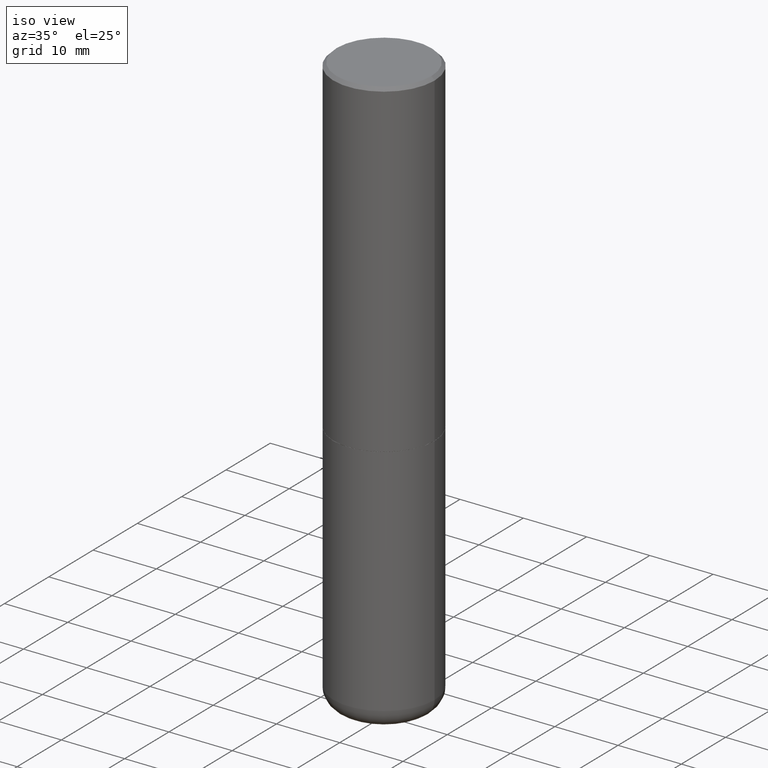
[diagram: clean part render]
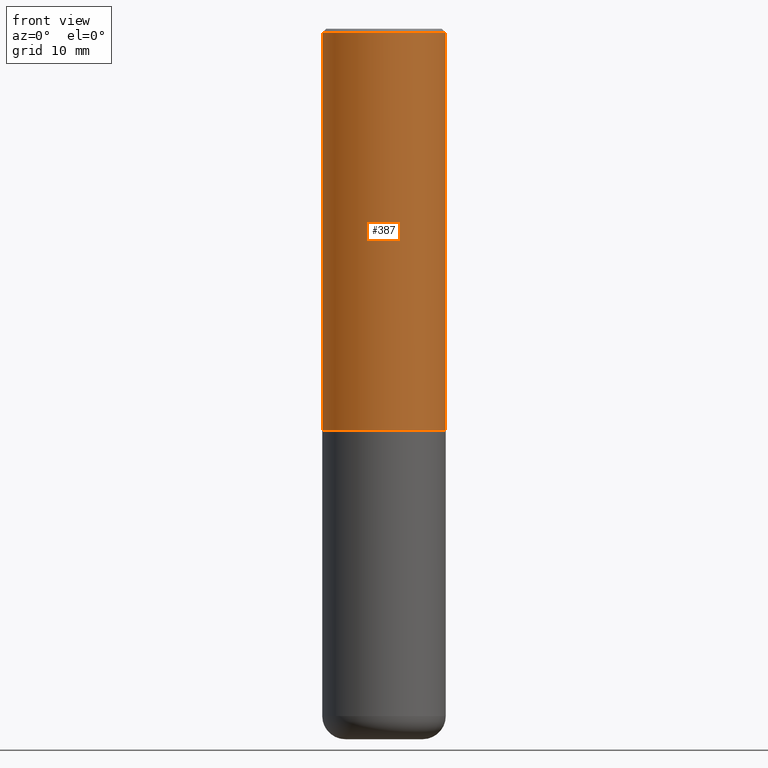
[diagram: tour spotlight — one face highlighted and labeled with its STEP entity id]
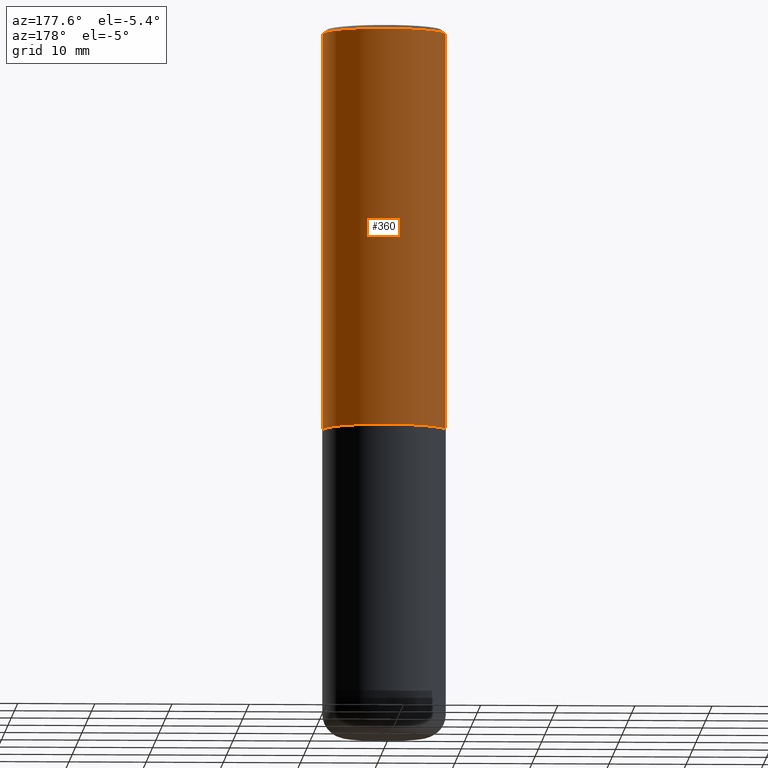
[diagram: tour spotlight — one face highlighted and labeled with its STEP entity id]
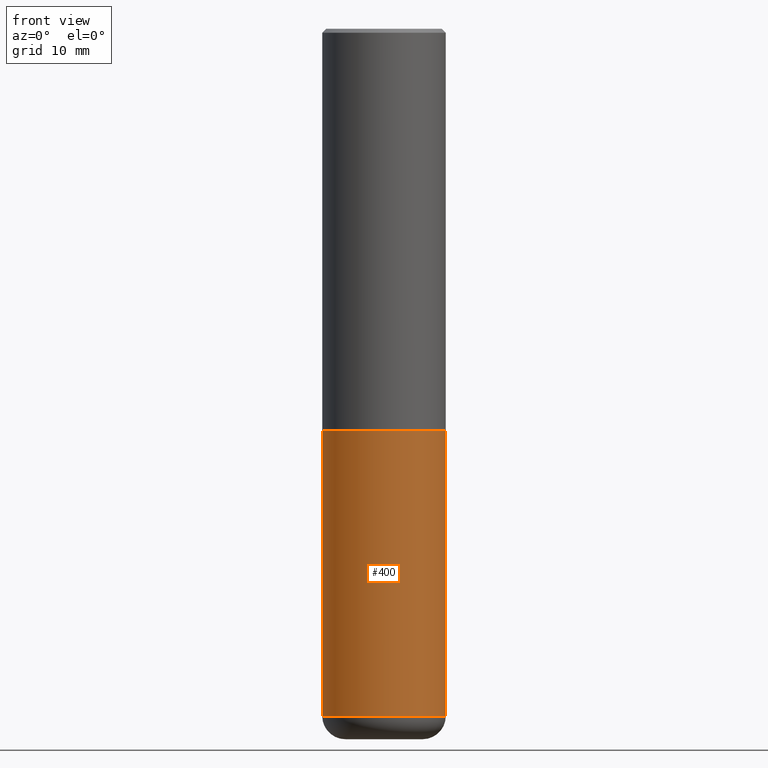
[diagram: tour spotlight — one face highlighted and labeled with its STEP entity id]
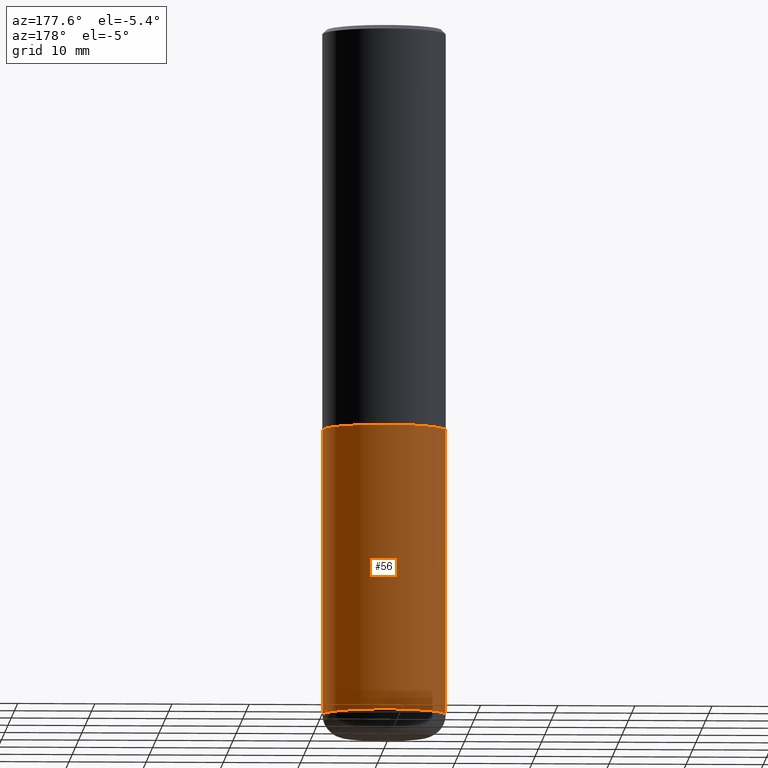
[diagram: tour spotlight — one face highlighted and labeled with its STEP entity id]
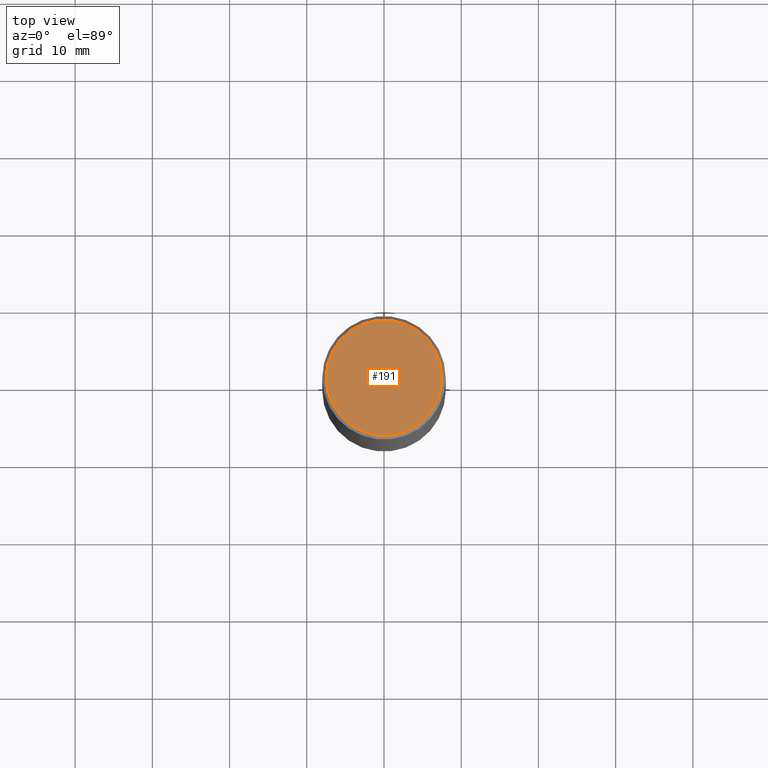
[diagram: tour spotlight — one face highlighted and labeled with its STEP entity id]
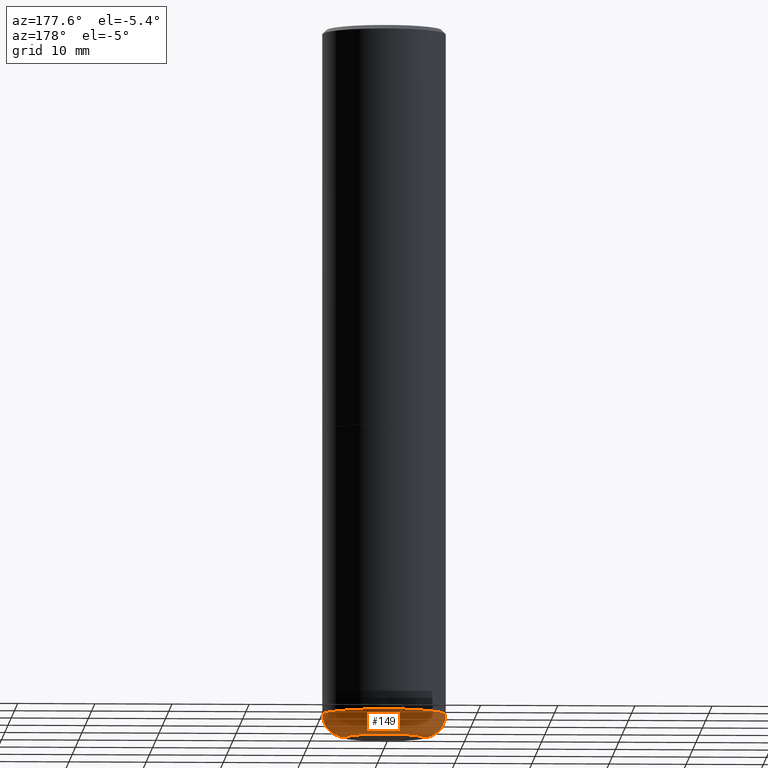
[diagram: tour spotlight — one face highlighted and labeled with its STEP entity id]
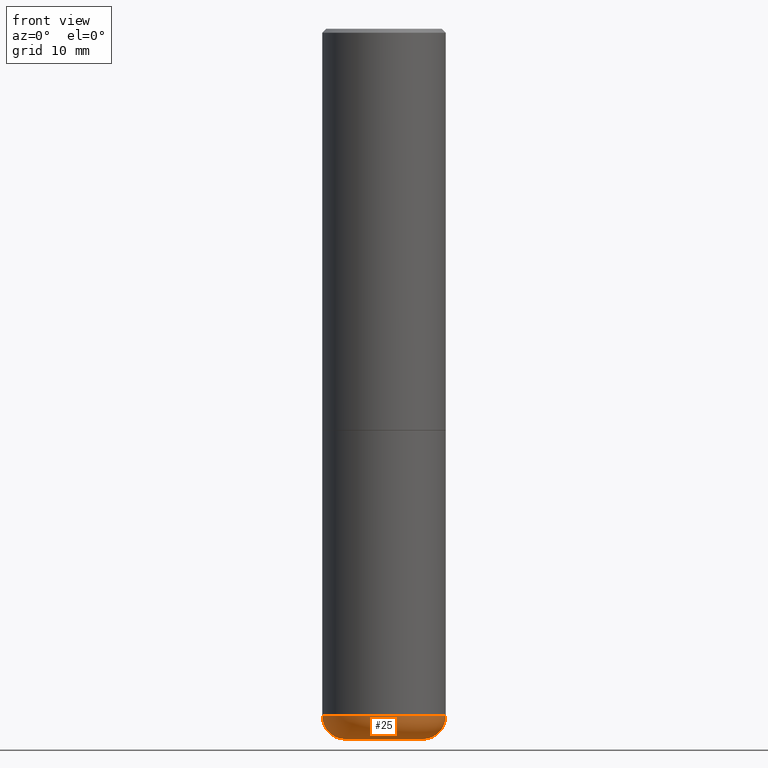
[diagram: tour spotlight — one face highlighted and labeled with its STEP entity id]
A machine part: a face-by-face anatomy tour. The part has 14 B-rep faces; the first image is the clean iso view, then the 7 largest visible faces are spotlighted one at a time (largest first), each with its STEP entity span.

Face 1 — front view, entity #387. In plain terms, the highlighted cylindrical surface (partial cylindrical patch) has radius 7.9997 mm, axis along (-0, 0, 1).
Definition (entity closure, byte-faithful):
#5 = ORIENTED_EDGE ( 'NONE', *, *, #129, .T. ) ;
#6 = CIRCLE ( 'NONE', #173, 0.3149500000000002853 ) ;
#17 = DIRECTION ( 'NONE',  ( 1.000000000000000000, -6.982962677686267499E-15, 0.000000000000000000 ) ) ;
#22 = DIRECTION ( 'NONE',  ( 1.000000000000000000, -6.982962677686265922E-15, 4.876176775795935232E-29 ) ) ;
#27 = CARTESIAN_POINT ( 'NONE',  ( 0.3149500000000002853, -9.343553210878135066E-15, -2.046199999999999797 ) ) ;
#39 = CARTESIAN_POINT ( 'NONE',  ( -0.3149500000000002853, -1.369195024882414317E-15, -2.046199999999999797 ) ) ;
#42 = AXIS2_PLACEMENT_3D ( 'NONE', #89, #355, #22 ) ;
#47 = LINE ( 'NONE', #86, #125 ) ;
#61 = EDGE_CURVE ( 'NONE', #196, #282, #47, .T. ) ;
#80 = CARTESIAN_POINT ( 'NONE',  ( 4.890937612370289799E-31, -6.982962677686315028E-17, -0.02000000000000006981 ) ) ;
#86 = CARTESIAN_POINT ( 'NONE',  ( -0.3149500000000001743, 2.237854346276436774E-15, -1.549218606675783237E-29 ) ) ;
#89 = CARTESIAN_POINT ( 'NONE',  ( 0.000000000000000000, 0.000000000000000000, 0.000000000000000000 ) ) ;
#96 = ORIENTED_EDGE ( 'NONE', *, *, #232, .T. ) ;
#113 = VERTEX_POINT ( 'NONE', #224 ) ;
#115 = EDGE_LOOP ( 'NONE', ( #393, #5, #96, #263 ) ) ;
#121 = CARTESIAN_POINT ( 'NONE',  ( 0.3149500000000001743, -2.199284095337290660E-15, 1.535751875536930690E-29 ) ) ;
#125 = VECTOR ( 'NONE', #348, 39.37007874015748143 ) ;
#128 = LINE ( 'NONE', #121, #202 ) ;
#129 = EDGE_CURVE ( 'NONE', #196, #394, #6, .T. ) ;
#168 = CARTESIAN_POINT ( 'NONE',  ( -0.3149499999999999522, 2.129454468560426178E-15, -0.02000000000000006981 ) ) ;
#173 = AXIS2_PLACEMENT_3D ( 'NONE', #239, #404, #17 ) ;
#194 = CYLINDRICAL_SURFACE ( 'NONE', #42, 0.3149500000000001743 ) ;
#196 = VERTEX_POINT ( 'NONE', #39 ) ;
#202 = VECTOR ( 'NONE', #228, 39.37007874015748143 ) ;
#203 = DIRECTION ( 'NONE',  ( -2.445468806185136597E-29, 3.491481338843145583E-15, 1.000000000000000000 ) ) ;
#210 = DIRECTION ( 'NONE',  ( 1.000000000000000000, -6.982962677686266711E-15, 0.000000000000000000 ) ) ;
#224 = CARTESIAN_POINT ( 'NONE',  ( 0.3149499999999999522, -2.230543471175006661E-15, -0.02000000000000006981 ) ) ;
#228 = DIRECTION ( 'NONE',  ( -2.445468806185136877E-29, 3.491481338843145188E-15, 1.000000000000000000 ) ) ;
#231 = CIRCLE ( 'NONE', #337, 0.3149499999999999522 ) ;
#232 = EDGE_CURVE ( 'NONE', #394, #113, #128, .T. ) ;
#239 = CARTESIAN_POINT ( 'NONE',  ( 5.003918271216025517E-29, -7.144269115540843617E-15, -2.046199999999999797 ) ) ;
#251 = FACE_OUTER_BOUND ( 'NONE', #115, .T. ) ;
#263 = ORIENTED_EDGE ( 'NONE', *, *, #271, .F. ) ;
#271 = EDGE_CURVE ( 'NONE', #282, #113, #231, .T. ) ;
#282 = VERTEX_POINT ( 'NONE', #168 ) ;
#337 = AXIS2_PLACEMENT_3D ( 'NONE', #80, #203, #210 ) ;
#348 = DIRECTION ( 'NONE',  ( -2.445468806185136877E-29, 3.491481338843145188E-15, 1.000000000000000000 ) ) ;
#355 = DIRECTION ( 'NONE',  ( -2.445468806185136597E-29, 3.491481338843145583E-15, 1.000000000000000000 ) ) ;
#387 = ADVANCED_FACE ( 'NONE', ( #251 ), #194, .T. ) ;
#393 = ORIENTED_EDGE ( 'NONE', *, *, #61, .F. ) ;
#394 = VERTEX_POINT ( 'NONE', #27 ) ;
#404 = DIRECTION ( 'NONE',  ( -2.445468806185136597E-29, 3.491481338843145583E-15, 1.000000000000000000 ) ) ;

Face 2 — auxiliary view, entity #360. In plain terms, the highlighted cylindrical surface (partial cylindrical patch) has radius 7.9997 mm, axis along (-0, 0, 1).
Definition (entity closure, byte-faithful):
#11 = DIRECTION ( 'NONE',  ( -2.445468806185136597E-29, 3.491481338843145583E-15, 1.000000000000000000 ) ) ;
#27 = CARTESIAN_POINT ( 'NONE',  ( 0.3149500000000002853, -9.343553210878135066E-15, -2.046199999999999797 ) ) ;
#33 = ORIENTED_EDGE ( 'NONE', *, *, #232, .F. ) ;
#39 = CARTESIAN_POINT ( 'NONE',  ( -0.3149500000000002853, -1.369195024882414317E-15, -2.046199999999999797 ) ) ;
#47 = LINE ( 'NONE', #86, #125 ) ;
#61 = EDGE_CURVE ( 'NONE', #196, #282, #47, .T. ) ;
#77 = CARTESIAN_POINT ( 'NONE',  ( 5.003918271216025517E-29, -7.144269115540843617E-15, -2.046199999999999797 ) ) ;
#84 = CIRCLE ( 'NONE', #317, 0.3149499999999999522 ) ;
#86 = CARTESIAN_POINT ( 'NONE',  ( -0.3149500000000001743, 2.237854346276436774E-15, -1.549218606675783237E-29 ) ) ;
#101 = EDGE_CURVE ( 'NONE', #113, #282, #84, .T. ) ;
#113 = VERTEX_POINT ( 'NONE', #224 ) ;
#114 = DIRECTION ( 'NONE',  ( 1.000000000000000000, -6.982962677686266711E-15, 0.000000000000000000 ) ) ;
#118 = DIRECTION ( 'NONE',  ( 1.000000000000000000, -6.982962677686267499E-15, 0.000000000000000000 ) ) ;
#121 = CARTESIAN_POINT ( 'NONE',  ( 0.3149500000000001743, -2.199284095337290660E-15, 1.535751875536930690E-29 ) ) ;
#125 = VECTOR ( 'NONE', #348, 39.37007874015748143 ) ;
#128 = LINE ( 'NONE', #121, #202 ) ;
#137 = EDGE_CURVE ( 'NONE', #394, #196, #410, .T. ) ;
#144 = EDGE_LOOP ( 'NONE', ( #331, #416, #339, #33 ) ) ;
#154 = FACE_OUTER_BOUND ( 'NONE', #144, .T. ) ;
#168 = CARTESIAN_POINT ( 'NONE',  ( -0.3149499999999999522, 2.129454468560426178E-15, -0.02000000000000006981 ) ) ;
#196 = VERTEX_POINT ( 'NONE', #39 ) ;
#202 = VECTOR ( 'NONE', #228, 39.37007874015748143 ) ;
#224 = CARTESIAN_POINT ( 'NONE',  ( 0.3149499999999999522, -2.230543471175006661E-15, -0.02000000000000006981 ) ) ;
#226 = CARTESIAN_POINT ( 'NONE',  ( 0.000000000000000000, 0.000000000000000000, 0.000000000000000000 ) ) ;
#228 = DIRECTION ( 'NONE',  ( -2.445468806185136877E-29, 3.491481338843145188E-15, 1.000000000000000000 ) ) ;
#230 = AXIS2_PLACEMENT_3D ( 'NONE', #77, #319, #118 ) ;
#232 = EDGE_CURVE ( 'NONE', #394, #113, #128, .T. ) ;
#282 = VERTEX_POINT ( 'NONE', #168 ) ;
#288 = DIRECTION ( 'NONE',  ( 1.000000000000000000, -6.982962677686265922E-15, 4.876176775795935232E-29 ) ) ;
#317 = AXIS2_PLACEMENT_3D ( 'NONE', #341, #11, #114 ) ;
#319 = DIRECTION ( 'NONE',  ( -2.445468806185136597E-29, 3.491481338843145583E-15, 1.000000000000000000 ) ) ;
#323 = DIRECTION ( 'NONE',  ( -2.445468806185136597E-29, 3.491481338843145583E-15, 1.000000000000000000 ) ) ;
#331 = ORIENTED_EDGE ( 'NONE', *, *, #137, .T. ) ;
#339 = ORIENTED_EDGE ( 'NONE', *, *, #101, .F. ) ;
#341 = CARTESIAN_POINT ( 'NONE',  ( 4.890937612370289799E-31, -6.982962677686315028E-17, -0.02000000000000006981 ) ) ;
#348 = DIRECTION ( 'NONE',  ( -2.445468806185136877E-29, 3.491481338843145188E-15, 1.000000000000000000 ) ) ;
#352 = AXIS2_PLACEMENT_3D ( 'NONE', #226, #323, #288 ) ;
#354 = CYLINDRICAL_SURFACE ( 'NONE', #352, 0.3149500000000001743 ) ;
#360 = ADVANCED_FACE ( 'NONE', ( #154 ), #354, .T. ) ;
#394 = VERTEX_POINT ( 'NONE', #27 ) ;
#410 = CIRCLE ( 'NONE', #230, 0.3149500000000002853 ) ;
#416 = ORIENTED_EDGE ( 'NONE', *, *, #61, .T. ) ;

Face 3 — front view, entity #400. In plain terms, the highlighted cylindrical surface (partial cylindrical patch) has radius 7.9997 mm, axis along (-0, 0, 1).
Definition (entity closure, byte-faithful):
#13 = DIRECTION ( 'NONE',  ( -2.445468806185136597E-29, 3.491481338843145583E-15, 1.000000000000000000 ) ) ;
#34 = EDGE_LOOP ( 'NONE', ( #64, #132, #396, #374 ) ) ;
#57 = DIRECTION ( 'NONE',  ( -2.445468806185136597E-29, 3.491481338843145583E-15, 1.000000000000000000 ) ) ;
#64 = ORIENTED_EDGE ( 'NONE', *, *, #198, .F. ) ;
#76 = EDGE_CURVE ( 'NONE', #105, #142, #295, .T. ) ;
#95 = VECTOR ( 'NONE', #223, 39.37007874015748143 ) ;
#100 = CIRCLE ( 'NONE', #361, 0.3149500000000000077 ) ;
#105 = VERTEX_POINT ( 'NONE', #382 ) ;
#112 = CARTESIAN_POINT ( 'NONE',  ( 5.006363740022211120E-29, -7.147760596879686624E-15, -2.047199999999999687 ) ) ;
#123 = DIRECTION ( 'NONE',  ( -2.445468806185136877E-29, 3.491481338843145188E-15, 1.000000000000000000 ) ) ;
#132 = ORIENTED_EDGE ( 'NONE', *, *, #76, .T. ) ;
#140 = LINE ( 'NONE', #208, #311 ) ;
#142 = VERTEX_POINT ( 'NONE', #384 ) ;
#155 = FACE_OUTER_BOUND ( 'NONE', #34, .T. ) ;
#161 = EDGE_CURVE ( 'NONE', #142, #199, #184, .T. ) ;
#180 = DIRECTION ( 'NONE',  ( -2.445468806185136597E-29, 3.491481338843145583E-15, 1.000000000000000000 ) ) ;
#184 = LINE ( 'NONE', #245, #95 ) ;
#198 = EDGE_CURVE ( 'NONE', #105, #238, #140, .T. ) ;
#199 = VERTEX_POINT ( 'NONE', #415 ) ;
#208 = CARTESIAN_POINT ( 'NONE',  ( -0.3149500000000000077, 2.237854346276435590E-15, -1.549218606675782676E-29 ) ) ;
#223 = DIRECTION ( 'NONE',  ( -2.445468806185136877E-29, 3.491481338843145188E-15, 1.000000000000000000 ) ) ;
#227 = AXIS2_PLACEMENT_3D ( 'NONE', #358, #57, #255 ) ;
#238 = VERTEX_POINT ( 'NONE', #385 ) ;
#241 = AXIS2_PLACEMENT_3D ( 'NONE', #320, #180, #386 ) ;
#245 = CARTESIAN_POINT ( 'NONE',  ( 0.3149500000000000077, -2.199284095337289871E-15, 1.535751875536930130E-29 ) ) ;
#255 = DIRECTION ( 'NONE',  ( 1.000000000000000000, -6.982962677686266711E-15, 4.876176775795936353E-29 ) ) ;
#278 = EDGE_CURVE ( 'NONE', #238, #199, #100, .T. ) ;
#291 = CYLINDRICAL_SURFACE ( 'NONE', #227, 0.3149500000000000077 ) ;
#295 = CIRCLE ( 'NONE', #241, 0.3149500000000000077 ) ;
#311 = VECTOR ( 'NONE', #123, 39.37007874015748143 ) ;
#320 = CARTESIAN_POINT ( 'NONE',  ( 8.568678149992099474E-29, -1.223380146317249786E-14, -3.503899999999999793 ) ) ;
#343 = DIRECTION ( 'NONE',  ( 1.000000000000000000, -6.982962677686269866E-15, 0.000000000000000000 ) ) ;
#358 = CARTESIAN_POINT ( 'NONE',  ( 0.000000000000000000, 0.000000000000000000, 0.000000000000000000 ) ) ;
#361 = AXIS2_PLACEMENT_3D ( 'NONE', #112, #13, #343 ) ;
#374 = ORIENTED_EDGE ( 'NONE', *, *, #278, .F. ) ;
#382 = CARTESIAN_POINT ( 'NONE',  ( -0.3149500000000000077, -9.995947116896063452E-15, -3.503899999999999793 ) ) ;
#384 = CARTESIAN_POINT ( 'NONE',  ( 0.3149500000000000077, -1.443308555850978615E-14, -3.503899999999999793 ) ) ;
#385 = CARTESIAN_POINT ( 'NONE',  ( -0.3149500000000000077, -7.452926683749657046E-15, -2.047199999999999687 ) ) ;
#386 = DIRECTION ( 'NONE',  ( 1.000000000000000000, -6.982962677686263555E-15, 0.000000000000000000 ) ) ;
#396 = ORIENTED_EDGE ( 'NONE', *, *, #161, .T. ) ;
#400 = ADVANCED_FACE ( 'NONE', ( #155 ), #291, .T. ) ;
#415 = CARTESIAN_POINT ( 'NONE',  ( 0.3149500000000000077, -9.347044692216978073E-15, -2.047199999999999687 ) ) ;

Face 4 — auxiliary view, entity #56. In plain terms, the highlighted cylindrical surface (partial cylindrical patch) has radius 7.9997 mm, axis along (-0, 0, 1).
Definition (entity closure, byte-faithful):
#51 = DIRECTION ( 'NONE',  ( -2.445468806185136597E-29, 3.491481338843145583E-15, 1.000000000000000000 ) ) ;
#56 = ADVANCED_FACE ( 'NONE', ( #211 ), #127, .T. ) ;
#62 = AXIS2_PLACEMENT_3D ( 'NONE', #357, #279, #209 ) ;
#95 = VECTOR ( 'NONE', #223, 39.37007874015748143 ) ;
#98 = ORIENTED_EDGE ( 'NONE', *, *, #322, .F. ) ;
#105 = VERTEX_POINT ( 'NONE', #382 ) ;
#122 = DIRECTION ( 'NONE',  ( 1.000000000000000000, -6.982962677686263555E-15, 0.000000000000000000 ) ) ;
#123 = DIRECTION ( 'NONE',  ( -2.445468806185136877E-29, 3.491481338843145188E-15, 1.000000000000000000 ) ) ;
#127 = CYLINDRICAL_SURFACE ( 'NONE', #62, 0.3149500000000000077 ) ;
#136 = ORIENTED_EDGE ( 'NONE', *, *, #176, .T. ) ;
#140 = LINE ( 'NONE', #208, #311 ) ;
#142 = VERTEX_POINT ( 'NONE', #384 ) ;
#159 = EDGE_LOOP ( 'NONE', ( #136, #329, #98, #165 ) ) ;
#161 = EDGE_CURVE ( 'NONE', #142, #199, #184, .T. ) ;
#165 = ORIENTED_EDGE ( 'NONE', *, *, #161, .F. ) ;
#172 = CARTESIAN_POINT ( 'NONE',  ( 5.006363740022211120E-29, -7.147760596879686624E-15, -2.047199999999999687 ) ) ;
#176 = EDGE_CURVE ( 'NONE', #142, #105, #326, .T. ) ;
#184 = LINE ( 'NONE', #245, #95 ) ;
#198 = EDGE_CURVE ( 'NONE', #105, #238, #140, .T. ) ;
#199 = VERTEX_POINT ( 'NONE', #415 ) ;
#208 = CARTESIAN_POINT ( 'NONE',  ( -0.3149500000000000077, 2.237854346276435590E-15, -1.549218606675782676E-29 ) ) ;
#209 = DIRECTION ( 'NONE',  ( 1.000000000000000000, -6.982962677686266711E-15, 4.876176775795936353E-29 ) ) ;
#211 = FACE_OUTER_BOUND ( 'NONE', #159, .T. ) ;
#216 = CARTESIAN_POINT ( 'NONE',  ( 8.568678149992099474E-29, -1.223380146317249786E-14, -3.503899999999999793 ) ) ;
#223 = DIRECTION ( 'NONE',  ( -2.445468806185136877E-29, 3.491481338843145188E-15, 1.000000000000000000 ) ) ;
#238 = VERTEX_POINT ( 'NONE', #385 ) ;
#245 = CARTESIAN_POINT ( 'NONE',  ( 0.3149500000000000077, -2.199284095337289871E-15, 1.535751875536930130E-29 ) ) ;
#269 = AXIS2_PLACEMENT_3D ( 'NONE', #172, #51, #285 ) ;
#279 = DIRECTION ( 'NONE',  ( -2.445468806185136597E-29, 3.491481338843145583E-15, 1.000000000000000000 ) ) ;
#285 = DIRECTION ( 'NONE',  ( 1.000000000000000000, -6.982962677686269866E-15, 0.000000000000000000 ) ) ;
#311 = VECTOR ( 'NONE', #123, 39.37007874015748143 ) ;
#322 = EDGE_CURVE ( 'NONE', #199, #238, #414, .T. ) ;
#326 = CIRCLE ( 'NONE', #372, 0.3149500000000000077 ) ;
#329 = ORIENTED_EDGE ( 'NONE', *, *, #198, .T. ) ;
#357 = CARTESIAN_POINT ( 'NONE',  ( 0.000000000000000000, 0.000000000000000000, 0.000000000000000000 ) ) ;
#372 = AXIS2_PLACEMENT_3D ( 'NONE', #216, #407, #122 ) ;
#382 = CARTESIAN_POINT ( 'NONE',  ( -0.3149500000000000077, -9.995947116896063452E-15, -3.503899999999999793 ) ) ;
#384 = CARTESIAN_POINT ( 'NONE',  ( 0.3149500000000000077, -1.443308555850978615E-14, -3.503899999999999793 ) ) ;
#385 = CARTESIAN_POINT ( 'NONE',  ( -0.3149500000000000077, -7.452926683749657046E-15, -2.047199999999999687 ) ) ;
#407 = DIRECTION ( 'NONE',  ( -2.445468806185136597E-29, 3.491481338843145583E-15, 1.000000000000000000 ) ) ;
#414 = CIRCLE ( 'NONE', #269, 0.3149500000000000077 ) ;
#415 = CARTESIAN_POINT ( 'NONE',  ( 0.3149500000000000077, -9.347044692216978073E-15, -2.047199999999999687 ) ) ;

Face 5 — top view, entity #191. In plain terms, the highlighted planar face has unit normal (0, -0, -1).
Definition (entity closure, byte-faithful):
#26 = DIRECTION ( 'NONE',  ( 1.000000000000000000, -6.982962677686265922E-15, 4.874125435057325556E-29 ) ) ;
#28 = CARTESIAN_POINT ( 'NONE',  ( 0.2949499999999997679, -2.127023677808858891E-15, 1.835460370743323251E-16 ) ) ;
#30 = AXIS2_PLACEMENT_3D ( 'NONE', #381, #70, #333 ) ;
#44 = PLANE ( 'NONE',  #30 ) ;
#70 = DIRECTION ( 'NONE',  ( 2.438088387897960049E-29, -3.491481338843145188E-15, -1.000000000000000000 ) ) ;
#90 = DIRECTION ( 'NONE',  ( -2.445468806185136597E-29, 3.491481338843145583E-15, 1.000000000000000000 ) ) ;
#93 = CARTESIAN_POINT ( 'NONE',  ( -0.2949499999999997679, 2.094539655171994924E-15, 1.835460370743031619E-16 ) ) ;
#158 = DIRECTION ( 'NONE',  ( 1.000000000000000000, -6.982962677686265922E-15, 4.874125435057325556E-29 ) ) ;
#169 = ORIENTED_EDGE ( 'NONE', *, *, #412, .T. ) ;
#181 = EDGE_LOOP ( 'NONE', ( #233, #169 ) ) ;
#191 = ADVANCED_FACE ( 'NONE', ( #306 ), #44, .F. ) ;
#213 = VERTEX_POINT ( 'NONE', #93 ) ;
#221 = VERTEX_POINT ( 'NONE', #28 ) ;
#233 = ORIENTED_EDGE ( 'NONE', *, *, #236, .T. ) ;
#236 = EDGE_CURVE ( 'NONE', #213, #221, #403, .T. ) ;
#246 = CARTESIAN_POINT ( 'NONE',  ( -4.488561081641444621E-45, 6.408475632635922878E-31, 1.835460370743176819E-16 ) ) ;
#254 = DIRECTION ( 'NONE',  ( -2.445468806185136597E-29, 3.491481338843145583E-15, 1.000000000000000000 ) ) ;
#262 = CIRCLE ( 'NONE', #290, 0.2949499999999997679 ) ;
#290 = AXIS2_PLACEMENT_3D ( 'NONE', #292, #90, #158 ) ;
#292 = CARTESIAN_POINT ( 'NONE',  ( -4.488561081641444621E-45, 6.408475632635922878E-31, 1.835460370743176819E-16 ) ) ;
#303 = AXIS2_PLACEMENT_3D ( 'NONE', #246, #254, #26 ) ;
#306 = FACE_OUTER_BOUND ( 'NONE', #181, .T. ) ;
#333 = DIRECTION ( 'NONE',  ( -1.000000000000000000, 6.982962677686265922E-15, -4.876176775795935793E-29 ) ) ;
#381 = CARTESIAN_POINT ( 'NONE',  ( 2.059624841783562486E-15, 0.2949499999999997679, -9.380394023546260134E-16 ) ) ;
#403 = CIRCLE ( 'NONE', #303, 0.2949499999999997679 ) ;
#412 = EDGE_CURVE ( 'NONE', #221, #213, #262, .T. ) ;

Face 6 — auxiliary view, entity #149. In plain terms, the highlighted toroidal blend (fillet) surface has major radius 5 mm and minor (blend) radius 2.9997 mm.
Definition (entity closure, byte-faithful):
#1 = CIRCLE ( 'NONE', #268, 0.1180999999999999966 ) ;
#24 = AXIS2_PLACEMENT_3D ( 'NONE', #151, #247, #65 ) ;
#41 = TOROIDAL_SURFACE ( 'NONE', #289, 0.1968500000000000250, 0.1181000000000000105 ) ;
#46 = DIRECTION ( 'NONE',  ( -1.000000000000000000, 7.105427357601005014E-15, 0.000000000000000000 ) ) ;
#50 = CARTESIAN_POINT ( 'NONE',  ( 0.1968500000000000250, -1.360839766627503947E-14, -3.503899999999999793 ) ) ;
#65 = DIRECTION ( 'NONE',  ( 1.000000000000000000, -6.982962677686267499E-15, 0.000000000000000000 ) ) ;
#68 = EDGE_CURVE ( 'NONE', #160, #142, #1, .T. ) ;
#78 = VERTEX_POINT ( 'NONE', #281 ) ;
#103 = EDGE_LOOP ( 'NONE', ( #369, #272, #367, #265 ) ) ;
#105 = VERTEX_POINT ( 'NONE', #382 ) ;
#122 = DIRECTION ( 'NONE',  ( 1.000000000000000000, -6.982962677686263555E-15, 0.000000000000000000 ) ) ;
#141 = FACE_OUTER_BOUND ( 'NONE', #103, .T. ) ;
#142 = VERTEX_POINT ( 'NONE', #384 ) ;
#146 = DIRECTION ( 'NONE',  ( -6.982962677686266711E-15, -1.000000000000000000, 3.491481338843145583E-15 ) ) ;
#149 = ADVANCED_FACE ( 'NONE', ( #141 ), #41, .T. ) ;
#151 = CARTESIAN_POINT ( 'NONE',  ( 8.857488016002564476E-29, -1.264614540928987199E-14, -3.621999999999999886 ) ) ;
#157 = AXIS2_PLACEMENT_3D ( 'NONE', #307, #270, #46 ) ;
#160 = VERTEX_POINT ( 'NONE', #212 ) ;
#176 = EDGE_CURVE ( 'NONE', #142, #105, #326, .T. ) ;
#185 = CIRCLE ( 'NONE', #157, 0.1180999999999999966 ) ;
#187 = EDGE_CURVE ( 'NONE', #160, #78, #351, .T. ) ;
#190 = DIRECTION ( 'NONE',  ( 1.000000000000000000, -6.982962677686273021E-15, 0.000000000000000000 ) ) ;
#212 = CARTESIAN_POINT ( 'NONE',  ( 0.1968500000000000250, -1.402074161239241360E-14, -3.621999999999999886 ) ) ;
#216 = CARTESIAN_POINT ( 'NONE',  ( 8.568678149992099474E-29, -1.223380146317249786E-14, -3.503899999999999793 ) ) ;
#247 = DIRECTION ( 'NONE',  ( -2.445468806185136597E-29, 3.491481338843145583E-15, 1.000000000000000000 ) ) ;
#265 = ORIENTED_EDGE ( 'NONE', *, *, #68, .F. ) ;
#268 = AXIS2_PLACEMENT_3D ( 'NONE', #50, #146, #190 ) ;
#270 = DIRECTION ( 'NONE',  ( 7.105427357601001859E-15, 1.000000000000000000, -3.491481338843145583E-15 ) ) ;
#272 = ORIENTED_EDGE ( 'NONE', *, *, #308, .T. ) ;
#274 = DIRECTION ( 'NONE',  ( -2.445468806185136597E-29, 3.491481338843145583E-15, 1.000000000000000000 ) ) ;
#281 = CARTESIAN_POINT ( 'NONE',  ( -0.1968500000000000250, -1.062169457542108922E-14, -3.621999999999999886 ) ) ;
#289 = AXIS2_PLACEMENT_3D ( 'NONE', #399, #274, #401 ) ;
#307 = CARTESIAN_POINT ( 'NONE',  ( -0.1968500000000000250, -1.083509808782873928E-14, -3.503899999999999793 ) ) ;
#308 = EDGE_CURVE ( 'NONE', #78, #105, #185, .T. ) ;
#326 = CIRCLE ( 'NONE', #372, 0.3149500000000000077 ) ;
#351 = CIRCLE ( 'NONE', #24, 0.1968500000000000250 ) ;
#367 = ORIENTED_EDGE ( 'NONE', *, *, #176, .F. ) ;
#369 = ORIENTED_EDGE ( 'NONE', *, *, #187, .T. ) ;
#372 = AXIS2_PLACEMENT_3D ( 'NONE', #216, #407, #122 ) ;
#382 = CARTESIAN_POINT ( 'NONE',  ( -0.3149500000000000077, -9.995947116896063452E-15, -3.503899999999999793 ) ) ;
#384 = CARTESIAN_POINT ( 'NONE',  ( 0.3149500000000000077, -1.443308555850978615E-14, -3.503899999999999793 ) ) ;
#399 = CARTESIAN_POINT ( 'NONE',  ( 8.568678149992099474E-29, -1.223380146317249786E-14, -3.503899999999999793 ) ) ;
#401 = DIRECTION ( 'NONE',  ( 1.000000000000000000, -6.982962677686263555E-15, 4.883557194083111780E-29 ) ) ;
#407 = DIRECTION ( 'NONE',  ( -2.445468806185136597E-29, 3.491481338843145583E-15, 1.000000000000000000 ) ) ;

Face 7 — front view, entity #25. In plain terms, the highlighted toroidal blend (fillet) surface has major radius 5 mm and minor (blend) radius 2.9997 mm.
Definition (entity closure, byte-faithful):
#1 = CIRCLE ( 'NONE', #268, 0.1180999999999999966 ) ;
#9 = EDGE_CURVE ( 'NONE', #78, #160, #261, .T. ) ;
#18 = DIRECTION ( 'NONE',  ( 1.000000000000000000, -6.982962677686263555E-15, 4.883557194083111780E-29 ) ) ;
#25 = ADVANCED_FACE ( 'NONE', ( #344 ), #207, .T. ) ;
#29 = AXIS2_PLACEMENT_3D ( 'NONE', #179, #276, #120 ) ;
#46 = DIRECTION ( 'NONE',  ( -1.000000000000000000, 7.105427357601005014E-15, 0.000000000000000000 ) ) ;
#50 = CARTESIAN_POINT ( 'NONE',  ( 0.1968500000000000250, -1.360839766627503947E-14, -3.503899999999999793 ) ) ;
#68 = EDGE_CURVE ( 'NONE', #160, #142, #1, .T. ) ;
#74 = ORIENTED_EDGE ( 'NONE', *, *, #76, .F. ) ;
#76 = EDGE_CURVE ( 'NONE', #105, #142, #295, .T. ) ;
#78 = VERTEX_POINT ( 'NONE', #281 ) ;
#105 = VERTEX_POINT ( 'NONE', #382 ) ;
#120 = DIRECTION ( 'NONE',  ( 1.000000000000000000, -6.982962677686267499E-15, 0.000000000000000000 ) ) ;
#142 = VERTEX_POINT ( 'NONE', #384 ) ;
#146 = DIRECTION ( 'NONE',  ( -6.982962677686266711E-15, -1.000000000000000000, 3.491481338843145583E-15 ) ) ;
#148 = ORIENTED_EDGE ( 'NONE', *, *, #308, .F. ) ;
#153 = CARTESIAN_POINT ( 'NONE',  ( 8.568678149992099474E-29, -1.223380146317249786E-14, -3.503899999999999793 ) ) ;
#157 = AXIS2_PLACEMENT_3D ( 'NONE', #307, #270, #46 ) ;
#160 = VERTEX_POINT ( 'NONE', #212 ) ;
#179 = CARTESIAN_POINT ( 'NONE',  ( 8.857488016002564476E-29, -1.264614540928987199E-14, -3.621999999999999886 ) ) ;
#180 = DIRECTION ( 'NONE',  ( -2.445468806185136597E-29, 3.491481338843145583E-15, 1.000000000000000000 ) ) ;
#185 = CIRCLE ( 'NONE', #157, 0.1180999999999999966 ) ;
#190 = DIRECTION ( 'NONE',  ( 1.000000000000000000, -6.982962677686273021E-15, 0.000000000000000000 ) ) ;
#207 = TOROIDAL_SURFACE ( 'NONE', #392, 0.1968500000000000250, 0.1181000000000000105 ) ;
#212 = CARTESIAN_POINT ( 'NONE',  ( 0.1968500000000000250, -1.402074161239241360E-14, -3.621999999999999886 ) ) ;
#241 = AXIS2_PLACEMENT_3D ( 'NONE', #320, #180, #386 ) ;
#261 = CIRCLE ( 'NONE', #29, 0.1968500000000000250 ) ;
#264 = ORIENTED_EDGE ( 'NONE', *, *, #68, .T. ) ;
#268 = AXIS2_PLACEMENT_3D ( 'NONE', #50, #146, #190 ) ;
#270 = DIRECTION ( 'NONE',  ( 7.105427357601001859E-15, 1.000000000000000000, -3.491481338843145583E-15 ) ) ;
#276 = DIRECTION ( 'NONE',  ( -2.445468806185136597E-29, 3.491481338843145583E-15, 1.000000000000000000 ) ) ;
#281 = CARTESIAN_POINT ( 'NONE',  ( -0.1968500000000000250, -1.062169457542108922E-14, -3.621999999999999886 ) ) ;
#287 = DIRECTION ( 'NONE',  ( -2.445468806185136597E-29, 3.491481338843145583E-15, 1.000000000000000000 ) ) ;
#295 = CIRCLE ( 'NONE', #241, 0.3149500000000000077 ) ;
#307 = CARTESIAN_POINT ( 'NONE',  ( -0.1968500000000000250, -1.083509808782873928E-14, -3.503899999999999793 ) ) ;
#308 = EDGE_CURVE ( 'NONE', #78, #105, #185, .T. ) ;
#320 = CARTESIAN_POINT ( 'NONE',  ( 8.568678149992099474E-29, -1.223380146317249786E-14, -3.503899999999999793 ) ) ;
#328 = EDGE_LOOP ( 'NONE', ( #148, #334, #264, #74 ) ) ;
#334 = ORIENTED_EDGE ( 'NONE', *, *, #9, .T. ) ;
#344 = FACE_OUTER_BOUND ( 'NONE', #328, .T. ) ;
#382 = CARTESIAN_POINT ( 'NONE',  ( -0.3149500000000000077, -9.995947116896063452E-15, -3.503899999999999793 ) ) ;
#384 = CARTESIAN_POINT ( 'NONE',  ( 0.3149500000000000077, -1.443308555850978615E-14, -3.503899999999999793 ) ) ;
#386 = DIRECTION ( 'NONE',  ( 1.000000000000000000, -6.982962677686263555E-15, 0.000000000000000000 ) ) ;
#392 = AXIS2_PLACEMENT_3D ( 'NONE', #153, #287, #18 ) ;